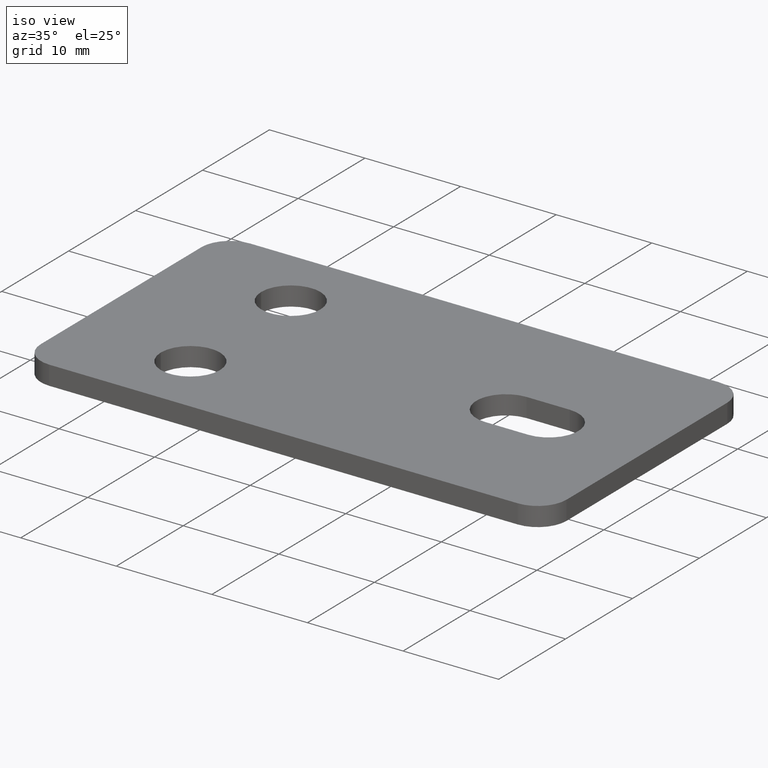
[diagram: clean part render]
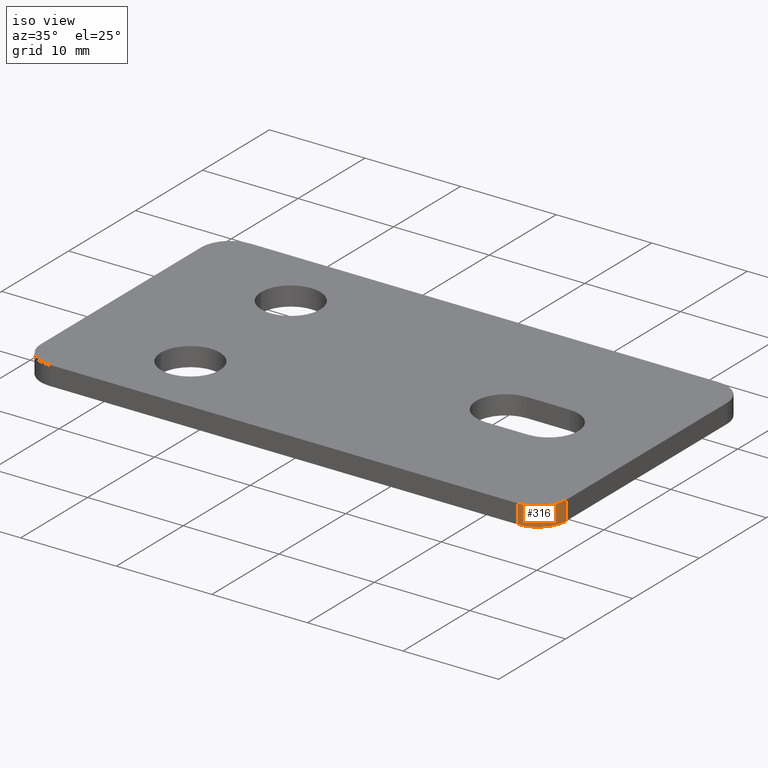
[diagram: same view with one face highlighted and labeled with its STEP entity id]
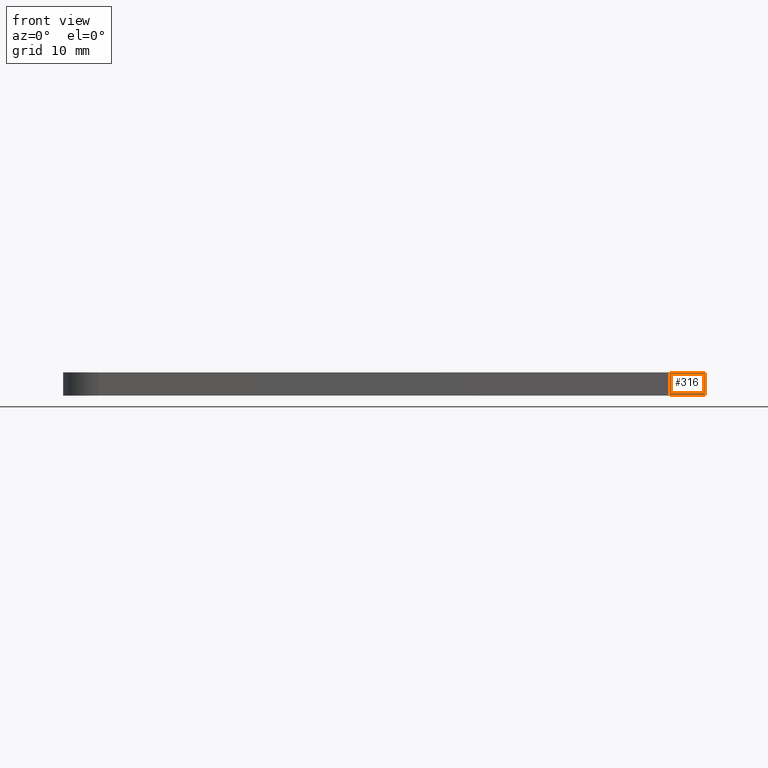
[diagram: same view with one face highlighted and labeled with its STEP entity id]
A machine part, iso view. The second image highlights one B-rep face of the part: STEP entity #316.
A second angle (front view) of the same face is appended — the face is thin or edge-on in the first view.
In plain terms, the highlighted cylindrical surface (edge-blend (fillet) strip) has radius 3 mm, axis along (0, 0, -1).
Its self-contained STEP definition (entity closure, byte-faithful):
#38=FACE_OUTER_BOUND('',#57,.T.);
#57=EDGE_LOOP('',(#257,#258,#259,#260));
#84=LINE('',#535,#110);
#86=LINE('',#539,#112);
#110=VECTOR('',#438,10.);
#112=VECTOR('',#442,10.);
#126=CIRCLE('',#357,3.);
#131=CIRCLE('',#365,3.);
#153=VERTEX_POINT('',#518);
#154=VERTEX_POINT('',#520);
#159=VERTEX_POINT('',#534);
#160=VERTEX_POINT('',#538);
#189=EDGE_CURVE('',#154,#153,#126,.T.);
#196=EDGE_CURVE('',#159,#154,#84,.T.);
#198=EDGE_CURVE('',#153,#160,#86,.T.);
#199=EDGE_CURVE('',#160,#159,#131,.T.);
#257=ORIENTED_EDGE('',*,*,#189,.T.);
#258=ORIENTED_EDGE('',*,*,#198,.T.);
#259=ORIENTED_EDGE('',*,*,#199,.T.);
#260=ORIENTED_EDGE('',*,*,#196,.T.);
#303=CYLINDRICAL_SURFACE('',#364,3.);
#316=ADVANCED_FACE('',(#38),#303,.T.);
#357=AXIS2_PLACEMENT_3D('',#521,#422,#423);
#364=AXIS2_PLACEMENT_3D('',#537,#440,#441);
#365=AXIS2_PLACEMENT_3D('',#540,#443,#444);
#422=DIRECTION('center_axis',(0.,0.,1.));
#423=DIRECTION('ref_axis',(0.707106781186548,-0.707106781186547,0.));
#438=DIRECTION('',(0.,0.,-1.));
#440=DIRECTION('center_axis',(0.,0.,-1.));
#441=DIRECTION('ref_axis',(0.707106781186548,-0.707106781186547,0.));
#442=DIRECTION('',(0.,0.,1.));
#443=DIRECTION('center_axis',(0.,0.,-1.));
#444=DIRECTION('ref_axis',(0.707106781186548,-0.707106781186547,0.));
#518=CARTESIAN_POINT('',(27.5,-12.,-1.));
#520=CARTESIAN_POINT('',(24.5,-15.,-1.));
#521=CARTESIAN_POINT('Origin',(24.5,-12.,-1.));
#534=CARTESIAN_POINT('',(24.5,-15.,1.));
#535=CARTESIAN_POINT('',(24.5,-15.,0.));
#537=CARTESIAN_POINT('Origin',(24.5,-12.,0.));
#538=CARTESIAN_POINT('',(27.5,-12.,1.));
#539=CARTESIAN_POINT('',(27.5,-12.,0.));
#540=CARTESIAN_POINT('Origin',(24.5,-12.,1.));